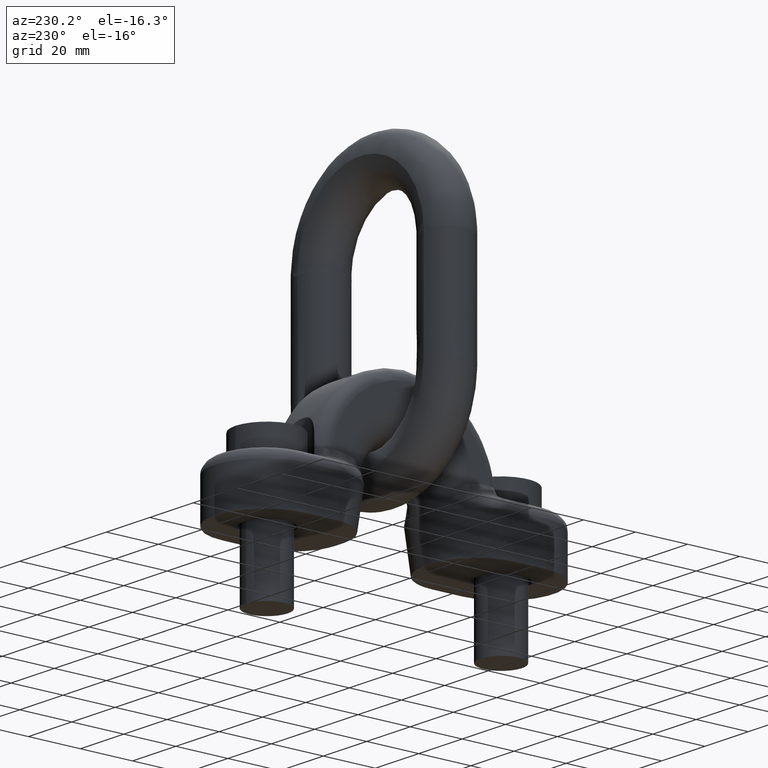
[diagram: clean part render]
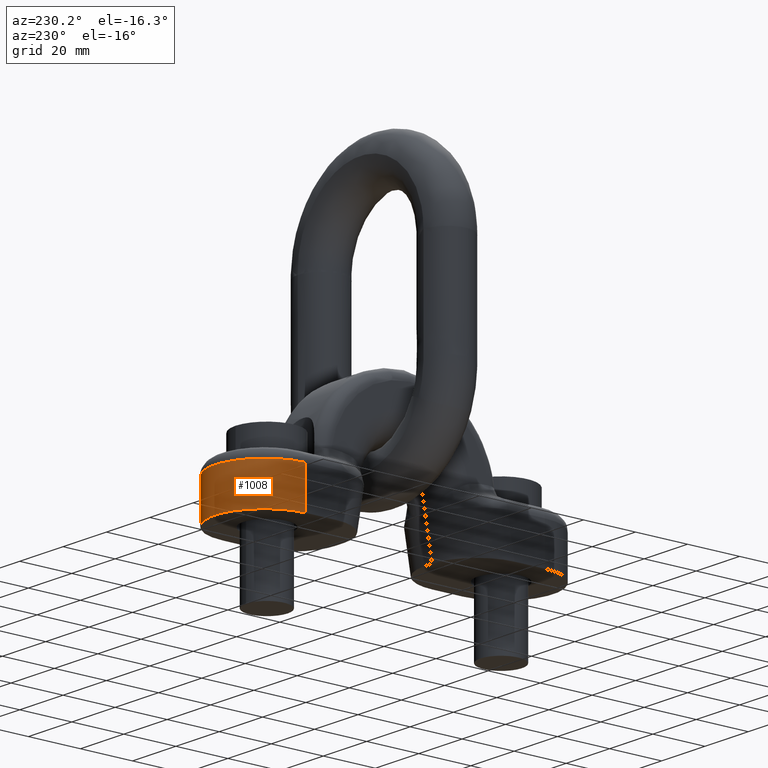
[diagram: same view with one face highlighted and labeled with its STEP entity id]
A machine part, auxiliary view. The second image highlights one B-rep face of the part: STEP entity #1008.
In plain terms, the highlighted cylindrical surface (partial cylindrical patch) has radius 19 mm, axis along (0, 0, -1).
Its self-contained STEP definition (entity closure, byte-faithful):
#853=FACE_OUTER_BOUND('',#1556,.T.);
#1008=ADVANCED_FACE('',(#853),#1170,.T.);
#1170=CYLINDRICAL_SURFACE('',#3635,19.);
#1205=LINE('',#5242,#1319);
#1219=LINE('',#5287,#1333);
#1319=VECTOR('',#3842,1.);
#1333=VECTOR('',#3884,1.);
#1556=EDGE_LOOP('',(#2217,#2218,#2219,#2220));
#2002=CIRCLE('',#3633,19.);
#2003=CIRCLE('',#3634,19.);
#2217=ORIENTED_EDGE('',*,*,#3228,.F.);
#2218=ORIENTED_EDGE('',*,*,#3281,.T.);
#2219=ORIENTED_EDGE('',*,*,#3250,.T.);
#2220=ORIENTED_EDGE('',*,*,#3282,.T.);
#2958=VERTEX_POINT('',#5241);
#2959=VERTEX_POINT('',#5243);
#2976=VERTEX_POINT('',#5288);
#2977=VERTEX_POINT('',#5289);
#3228=EDGE_CURVE('',#2958,#2959,#1205,.T.);
#3250=EDGE_CURVE('',#2976,#2977,#1219,.T.);
#3281=EDGE_CURVE('',#2958,#2976,#2002,.T.);
#3282=EDGE_CURVE('',#2977,#2959,#2003,.T.);
#3633=AXIS2_PLACEMENT_3D('',#5354,#3943,#3944);
#3634=AXIS2_PLACEMENT_3D('',#5355,#3945,#3946);
#3635=AXIS2_PLACEMENT_3D('',#5356,#3947,#3948);
#3842=DIRECTION('',(0.,0.,-1.));
#3884=DIRECTION('',(0.,0.,-1.));
#3943=DIRECTION('',(0.,5.78241158658936E-16,-1.));
#3944=DIRECTION('',(0.,1.,5.4780741346636E-16));
#3945=DIRECTION('',(0.,0.,1.));
#3946=DIRECTION('',(6.12323399573677E-17,1.,0.));
#3947=DIRECTION('',(0.,0.,-1.));
#3948=DIRECTION('',(-1.,0.,0.));
#5241=CARTESIAN_POINT('',(-19.,46.,15.5));
#5242=CARTESIAN_POINT('',(-19.,46.,112.));
#5243=CARTESIAN_POINT('',(-19.,46.,0.));
#5287=CARTESIAN_POINT('',(19.,46.,112.));
#5288=CARTESIAN_POINT('',(19.,46.,15.5));
#5289=CARTESIAN_POINT('',(19.,46.,0.));
#5354=CARTESIAN_POINT('',(-6.93889390390723E-15,46.,15.5));
#5355=CARTESIAN_POINT('',(-6.93889390390723E-15,46.,0.));
#5356=CARTESIAN_POINT('',(-6.93889390390723E-15,46.,112.));